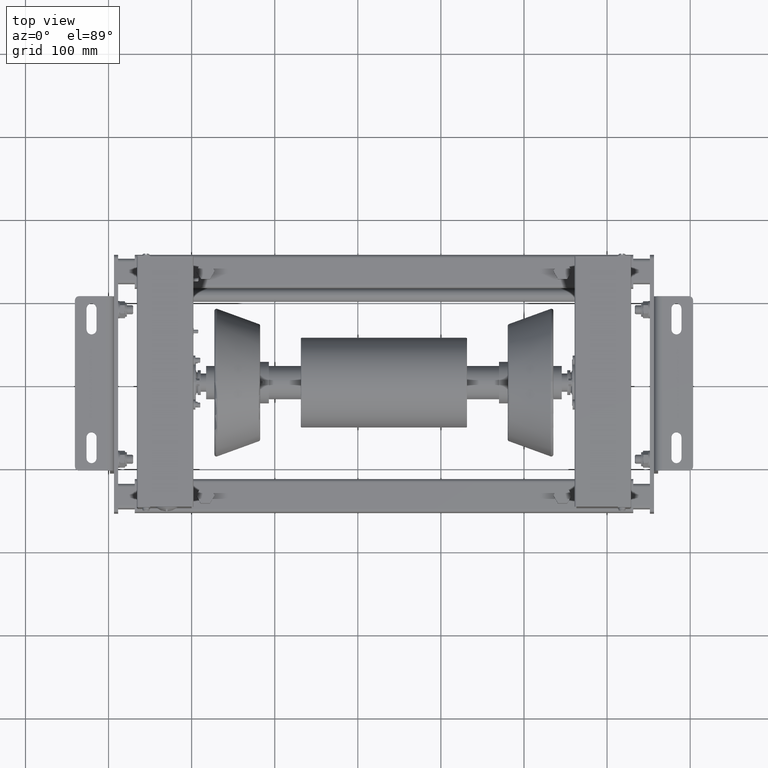
[diagram: clean part render]
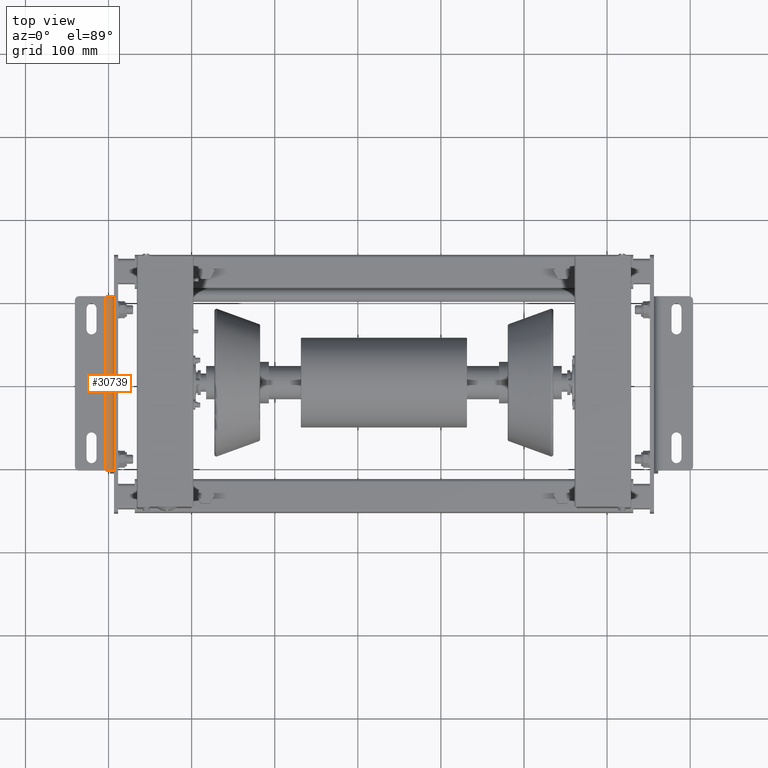
[diagram: same view with one face highlighted and labeled with its STEP entity id]
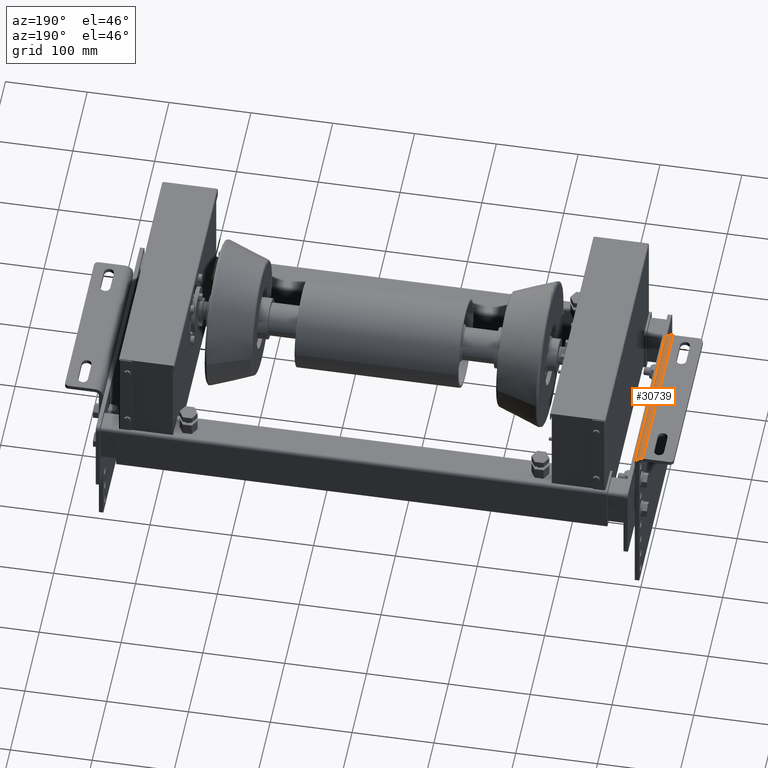
[diagram: same view with one face highlighted and labeled with its STEP entity id]
A machine part, top view. The second image highlights one B-rep face of the part: STEP entity #30739.
A second angle (auxiliary view) of the same face is appended — the face is thin or edge-on in the first view.
In plain terms, the highlighted cylindrical surface (edge-blend (fillet) strip) has radius 10 mm, axis along (0, -1, 0).
Its self-contained STEP definition (entity closure, byte-faithful):
#29814=CARTESIAN_POINT('',(108.042906985577450,78.410933634513455,-0.500000000000000));
#29815=VERTEX_POINT('',#29814);
#29822=CARTESIAN_POINT('',(108.042906985577450,88.410933634513441,9.500000000000000));
#29823=VERTEX_POINT('',#29822);
#29824=CARTESIAN_POINT('',(108.042906985577450,78.410933634513455,9.500000000000000));
#29825=DIRECTION('',(-1.000000000000000,0.0,0.0));
#29826=DIRECTION('',(0.0,0.707106781186547,-0.707106781186547));
#29827=AXIS2_PLACEMENT_3D('',#29824,#29825,#29826);
#29828=CIRCLE('',#29827,9.999999999999998);
#29829=EDGE_CURVE('',#29823,#29815,#29828,.T.);
#29896=CARTESIAN_POINT('',(-101.957093014422580,78.410933634513441,-0.500000000000000));
#29897=VERTEX_POINT('',#29896);
#29904=CARTESIAN_POINT('',(108.042906985577450,78.410933634513455,-0.500000000000000));
#29905=DIRECTION('',(-1.0,0.0,0.0));
#29906=VECTOR('',#29905,210.000000000000030);
#29907=LINE('',#29904,#29906);
#29908=EDGE_CURVE('',#29815,#29897,#29907,.T.);
#30145=CARTESIAN_POINT('',(-101.957093014422600,88.410933634513441,9.500000000000000));
#30146=VERTEX_POINT('',#30145);
#30153=CARTESIAN_POINT('',(-101.957093014422610,78.410933634513441,9.500000000000000));
#30154=DIRECTION('',(1.000000000000000,0.0,0.0));
#30155=DIRECTION('',(0.0,0.707106781186547,-0.707106781186547));
#30156=AXIS2_PLACEMENT_3D('',#30153,#30154,#30155);
#30157=CIRCLE('',#30156,9.999999999999998);
#30158=EDGE_CURVE('',#29897,#30146,#30157,.T.);
#30723=CARTESIAN_POINT('',(-49.457093014422590,78.410933634513441,9.500000000000000));
#30724=DIRECTION('',(1.0,1.224606E-016,0.0));
#30725=DIRECTION('',(0.0,0.707106781186547,-0.707106781186547));
#30726=AXIS2_PLACEMENT_3D('',#30723,#30724,#30725);
#30727=CYLINDRICAL_SURFACE('',#30726,10.0);
#30728=ORIENTED_EDGE('',*,*,#29829,.T.);
#30729=ORIENTED_EDGE('',*,*,#29908,.T.);
#30730=ORIENTED_EDGE('',*,*,#30158,.T.);
#30731=CARTESIAN_POINT('',(-101.957093014422600,88.410933634513441,9.500000000000000));
#30732=DIRECTION('',(1.0,0.0,0.0));
#30733=VECTOR('',#30732,210.000000000000060);
#30734=LINE('',#30731,#30733);
#30735=EDGE_CURVE('',#30146,#29823,#30734,.T.);
#30736=ORIENTED_EDGE('',*,*,#30735,.T.);
#30737=EDGE_LOOP('',(#30728,#30729,#30730,#30736));
#30738=FACE_OUTER_BOUND('',#30737,.T.);
#30739=ADVANCED_FACE('',(#30738),#30727,.T.);